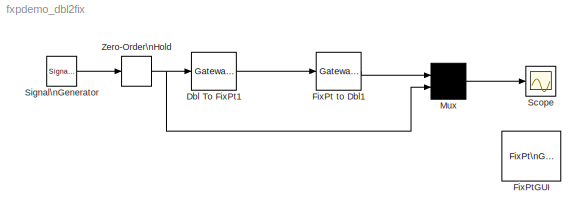
MODEL fxpdemo_dbl2fix
KIND model
CONFIG AbsTol = 1e-6
CONFIG FixedStep = 0.001
CONFIG InitFcn = ;fxptdlg('fxptdlg_simInit_cb');
CONFIG MaxStep = auto
CONFIG MinStep = auto
CONFIG RelTol = 1e-3
CONFIG Solver = FixedStepDiscrete
CONFIG SolverMode = SingleTasking
CONFIG StartFcn = ;fxptdlg('fxptdlg_sim_cb');
CONFIG StartTime = 0.0
CONFIG StopFcn = ;fxptdlg('fxptdlg_store_cb');
CONFIG StopTime = 1
BLOCK [Reference] Dbl To FixPt1  REF=fixpt_lib_4/Data Type/Gateway In  (lib defined in mdl_ef9dacb0d1df)
  DoSatur = off
  InRealWorld = Real World Value
  LockScale = off
  OutDataType = sfix(5)
  OutScaling = 2^-2
  OutputDataTypeScalingMode = Specify via dialog
  Ports = [1, 1]
  RndMeth = Floor
  SourceBlock = fixpt_lib_4/Data Type/Gateway In
  SourceType = Fixed-Point Gateway In
BLOCK [Reference] FixPt to Dbl1  REF=fixpt_lib_4/Data Type/Gateway Out  (lib defined in mdl_ef9dacb0d1df)
  DoSatur = off
  OutBuiltInType = double
  OutRealWorld = Real World Value
  Ports = [1, 1]
  RndMeth = Floor
  SourceBlock = fixpt_lib_4/Data Type/Gateway Out
  SourceType = Fixed-Point Gateway Out
BLOCK [Reference] FixPtGUI  REF=fixpt_lib_3p1/FixPt\nGUI
  Ports = []
  SourceBlock = fixpt_lib_3p1/FixPt\nGUI
  SourceType = Fixed-Point GUI
BLOCK [Mux] Mux
  Inputs = 2
  Ports = [2, 1]
BLOCK [Scope] Scope
  DataFormat = StructureWithTime
  NumInputPorts = 1
  Ports = [1]
  SaveToWorkspace = on
  TickLabels = on
  TimeRange = 1
  YMax = 10
  YMin = -10
BLOCK [SignalGenerator] Signal\nGenerator
  Amplitude = 10
  WaveForm = sawtooth
BLOCK [ZeroOrderHold] Zero-Order\nHold
  SampleTime = 0.001
LINE Dbl To FixPt1:1 -> FixPt to Dbl1:1
LINE FixPt to Dbl1:1 -> Mux:1
LINE Mux:1 -> Scope:1
LINE Signal\nGenerator:1 -> Zero-Order\nHold:1
NET Zero-Order\nHold:1 -> Dbl To FixPt1:1, Mux:2
note: NET lines group one-source signal fan-out (src -> all destinations, sorted); 1:1 wires keep LINE
